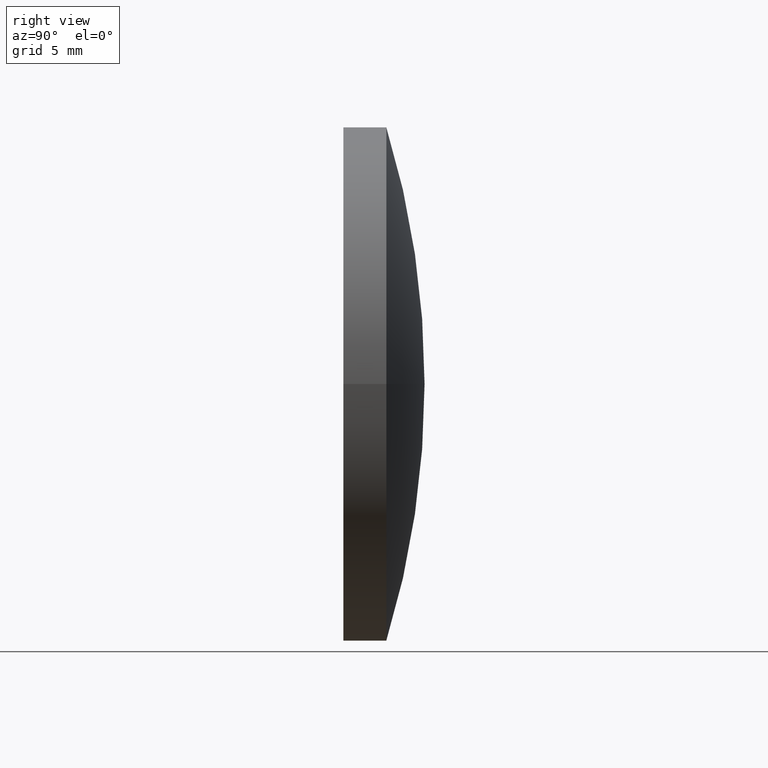
[diagram: clean part render]
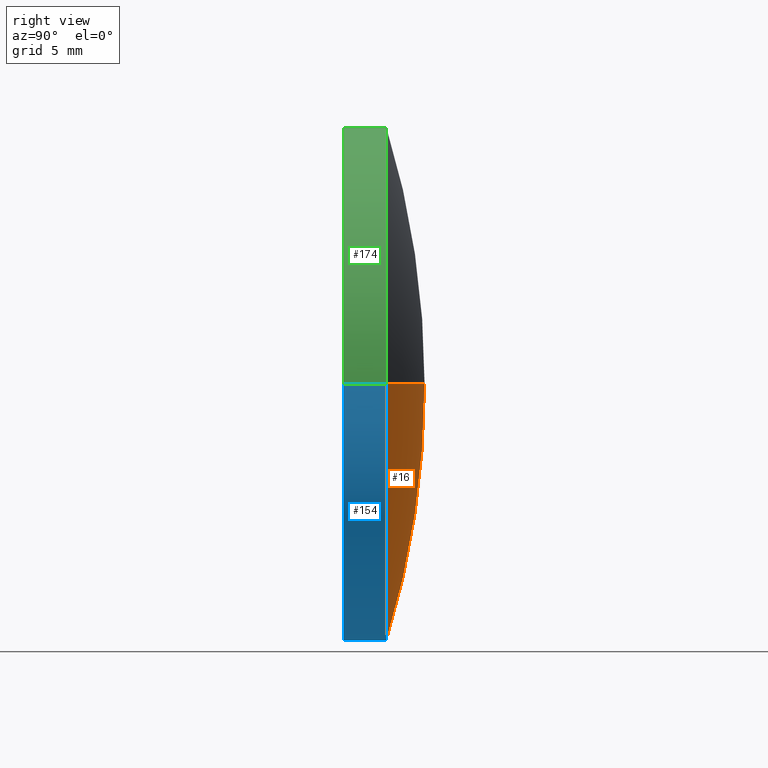
[diagram: same view with three faces highlighted in distinct colors, each labeled with its STEP entity id]
A machine part, right view with three faces highlighted in distinct colors.
Their STEP definitions:

[orange] entity #16 — the highlighted toroidal blend (fillet) surface has major radius 0.0114 mm and minor (blend) radius 51.64 mm.
#4 = CARTESIAN_POINT ( 'NONE',  ( -0.01138314681478247783, -46.90999874539085113, -1.394033431094687307E-18 ) ) ;
#6 = CIRCLE ( 'NONE', #128, 51.64000000000000057 ) ;
#9 = DIRECTION ( 'NONE',  ( -1.000000000000000000, 2.891205793294678696E-17, 0.000000000000000000 ) ) ;
#16 = ADVANCED_FACE ( 'NONE', ( #57 ), #80, .T. ) ;
#20 = VERTEX_POINT ( 'NONE', #193 ) ;
#29 = CARTESIAN_POINT ( 'NONE',  ( -15.00000000000000178, 2.500000000000000444, 0.000000000000000000 ) ) ;
#35 = CIRCLE ( 'NONE', #152, 15.00000000000000000 ) ;
#39 = EDGE_LOOP ( 'NONE', ( #147, #102, #159 ) ) ;
#57 = FACE_OUTER_BOUND ( 'NONE', #39, .T. ) ;
#69 = DIRECTION ( 'NONE',  ( -1.224646799147353207E-16, 1.870736303954534262E-33, 1.000000000000000000 ) ) ;
#74 = DIRECTION ( 'NONE',  ( -1.000000000000000000, 1.527572117329677268E-17, 0.000000000000000000 ) ) ;
#80 = TOROIDAL_SURFACE ( 'NONE', #199, -0.01138314681478176139, 51.64000000000000057 ) ;
#87 = VERTEX_POINT ( 'NONE', #125 ) ;
#92 = DIRECTION ( 'NONE',  ( 1.527572117329677268E-17, 1.000000000000000000, -0.000000000000000000 ) ) ;
#94 = EDGE_CURVE ( 'NONE', #87, #20, #6, .T. ) ;
#102 = ORIENTED_EDGE ( 'NONE', *, *, #187, .T. ) ;
#103 = CIRCLE ( 'NONE', #114, 51.64000000000000057 ) ;
#107 = CARTESIAN_POINT ( 'NONE',  ( -7.165898733771380869E-16, -46.90999874539085113, 0.000000000000000000 ) ) ;
#110 = CARTESIAN_POINT ( 'NONE',  ( 3.818930293324189780E-17, 2.499999999999997780, 0.000000000000000000 ) ) ;
#114 = AXIS2_PLACEMENT_3D ( 'NONE', #197, #140, #161 ) ;
#125 = CARTESIAN_POINT ( 'NONE',  ( 15.00000000000000000, 2.499999999999999556, 1.836970198721029589E-15 ) ) ;
#128 = AXIS2_PLACEMENT_3D ( 'NONE', #4, #69, #133 ) ;
#133 = DIRECTION ( 'NONE',  ( 1.000000000000000000, 0.000000000000000000, 1.224646799147353207E-16 ) ) ;
#140 = DIRECTION ( 'NONE',  ( -0.000000000000000000, 0.000000000000000000, -1.000000000000000000 ) ) ;
#143 = EDGE_CURVE ( 'NONE', #175, #20, #103, .T. ) ;
#147 = ORIENTED_EDGE ( 'NONE', *, *, #94, .F. ) ;
#150 = DIRECTION ( 'NONE',  ( 1.527572117329677268E-17, 1.000000000000000000, -0.000000000000000000 ) ) ;
#152 = AXIS2_PLACEMENT_3D ( 'NONE', #110, #92, #9 ) ;
#159 = ORIENTED_EDGE ( 'NONE', *, *, #143, .T. ) ;
#161 = DIRECTION ( 'NONE',  ( -1.000000000000000000, 0.000000000000000000, 0.000000000000000000 ) ) ;
#175 = VERTEX_POINT ( 'NONE', #29 ) ;
#187 = EDGE_CURVE ( 'NONE', #87, #175, #35, .T. ) ;
#193 = CARTESIAN_POINT ( 'NONE',  ( 7.225416114969374086E-17, 4.730000000000000426, 0.000000000000000000 ) ) ;
#197 = CARTESIAN_POINT ( 'NONE',  ( 0.01138314681478104495, -46.90999874539085113, 0.000000000000000000 ) ) ;
#199 = AXIS2_PLACEMENT_3D ( 'NONE', #107, #150, #74 ) ;

[blue] entity #154 — the highlighted cylindrical surface (partial cylindrical patch) has radius 15 mm, axis along (0, 1, -0).
#5 = DIRECTION ( 'NONE',  ( 1.527572117329677268E-17, 1.000000000000000000, -0.000000000000000000 ) ) ;
#8 = CARTESIAN_POINT ( 'NONE',  ( 15.00000000000000000, 4.730000000000000426, 1.836970198721029589E-15 ) ) ;
#9 = DIRECTION ( 'NONE',  ( -1.000000000000000000, 2.891205793294678696E-17, 0.000000000000000000 ) ) ;
#12 = CARTESIAN_POINT ( 'NONE',  ( -15.00000000000000000, 4.730000000000000426, 0.000000000000000000 ) ) ;
#21 = VERTEX_POINT ( 'NONE', #84 ) ;
#22 = ORIENTED_EDGE ( 'NONE', *, *, #187, .F. ) ;
#24 = EDGE_LOOP ( 'NONE', ( #191, #157, #151, #22 ) ) ;
#25 = CYLINDRICAL_SURFACE ( 'NONE', #89, 15.00000000000000000 ) ;
#26 = EDGE_CURVE ( 'NONE', #134, #87, #37, .T. ) ;
#27 = DIRECTION ( 'NONE',  ( -1.000000000000000000, 0.000000000000000000, 0.000000000000000000 ) ) ;
#29 = CARTESIAN_POINT ( 'NONE',  ( -15.00000000000000178, 2.500000000000000444, 0.000000000000000000 ) ) ;
#33 = VECTOR ( 'NONE', #163, 1000.000000000000000 ) ;
#35 = CIRCLE ( 'NONE', #152, 15.00000000000000000 ) ;
#37 = LINE ( 'NONE', #8, #149 ) ;
#48 = AXIS2_PLACEMENT_3D ( 'NONE', #61, #88, #127 ) ;
#61 = CARTESIAN_POINT ( 'NONE',  ( -3.611118645726067224E-32, -1.734723475976807094E-15, 0.000000000000000000 ) ) ;
#84 = CARTESIAN_POINT ( 'NONE',  ( -15.00000000000000000, -1.505587658377355424E-15, 0.000000000000000000 ) ) ;
#87 = VERTEX_POINT ( 'NONE', #125 ) ;
#88 = DIRECTION ( 'NONE',  ( 1.527572117329677268E-17, 1.000000000000000000, -0.000000000000000000 ) ) ;
#89 = AXIS2_PLACEMENT_3D ( 'NONE', #93, #124, #27 ) ;
#91 = LINE ( 'NONE', #12, #33 ) ;
#92 = DIRECTION ( 'NONE',  ( 1.527572117329677268E-17, 1.000000000000000000, -0.000000000000000000 ) ) ;
#93 = CARTESIAN_POINT ( 'NONE',  ( 7.225416114969374086E-17, 4.730000000000000426, 0.000000000000000000 ) ) ;
#110 = CARTESIAN_POINT ( 'NONE',  ( 3.818930293324189780E-17, 2.499999999999997780, 0.000000000000000000 ) ) ;
#124 = DIRECTION ( 'NONE',  ( 1.527572117329677268E-17, 1.000000000000000000, -0.000000000000000000 ) ) ;
#125 = CARTESIAN_POINT ( 'NONE',  ( 15.00000000000000000, 2.499999999999999556, 1.836970198721029589E-15 ) ) ;
#127 = DIRECTION ( 'NONE',  ( -1.000000000000000000, 1.527572117329677576E-17, 0.000000000000000000 ) ) ;
#134 = VERTEX_POINT ( 'NONE', #137 ) ;
#137 = CARTESIAN_POINT ( 'NONE',  ( 15.00000000000000000, -1.963859293576258765E-15, 1.836970198721029589E-15 ) ) ;
#139 = EDGE_CURVE ( 'NONE', #21, #175, #91, .T. ) ;
#149 = VECTOR ( 'NONE', #5, 1000.000000000000000 ) ;
#151 = ORIENTED_EDGE ( 'NONE', *, *, #139, .T. ) ;
#152 = AXIS2_PLACEMENT_3D ( 'NONE', #110, #92, #9 ) ;
#154 = ADVANCED_FACE ( 'NONE', ( #198 ), #25, .T. ) ;
#157 = ORIENTED_EDGE ( 'NONE', *, *, #180, .T. ) ;
#163 = DIRECTION ( 'NONE',  ( 1.527572117329677268E-17, 1.000000000000000000, -0.000000000000000000 ) ) ;
#175 = VERTEX_POINT ( 'NONE', #29 ) ;
#180 = EDGE_CURVE ( 'NONE', #134, #21, #195, .T. ) ;
#187 = EDGE_CURVE ( 'NONE', #87, #175, #35, .T. ) ;
#191 = ORIENTED_EDGE ( 'NONE', *, *, #26, .F. ) ;
#195 = CIRCLE ( 'NONE', #48, 15.00000000000000000 ) ;
#198 = FACE_OUTER_BOUND ( 'NONE', #24, .T. ) ;

[green] entity #174 — the highlighted cylindrical surface (partial cylindrical patch) has radius 15 mm, axis along (0, 1, -0).
#5 = DIRECTION ( 'NONE',  ( 1.527572117329677268E-17, 1.000000000000000000, -0.000000000000000000 ) ) ;
#8 = CARTESIAN_POINT ( 'NONE',  ( 15.00000000000000000, 4.730000000000000426, 1.836970198721029589E-15 ) ) ;
#12 = CARTESIAN_POINT ( 'NONE',  ( -15.00000000000000000, 4.730000000000000426, 0.000000000000000000 ) ) ;
#13 = EDGE_CURVE ( 'NONE', #21, #134, #86, .T. ) ;
#21 = VERTEX_POINT ( 'NONE', #84 ) ;
#26 = EDGE_CURVE ( 'NONE', #134, #87, #37, .T. ) ;
#29 = CARTESIAN_POINT ( 'NONE',  ( -15.00000000000000178, 2.500000000000000444, 0.000000000000000000 ) ) ;
#33 = VECTOR ( 'NONE', #163, 1000.000000000000000 ) ;
#37 = LINE ( 'NONE', #8, #149 ) ;
#38 = ORIENTED_EDGE ( 'NONE', *, *, #26, .T. ) ;
#41 = AXIS2_PLACEMENT_3D ( 'NONE', #148, #135, #90 ) ;
#45 = ORIENTED_EDGE ( 'NONE', *, *, #126, .F. ) ;
#54 = CARTESIAN_POINT ( 'NONE',  ( 3.818930293324189780E-17, 2.499999999999997780, 0.000000000000000000 ) ) ;
#58 = CYLINDRICAL_SURFACE ( 'NONE', #138, 15.00000000000000000 ) ;
#59 = DIRECTION ( 'NONE',  ( -1.000000000000000000, 0.000000000000000000, 0.000000000000000000 ) ) ;
#67 = CIRCLE ( 'NONE', #177, 15.00000000000000000 ) ;
#71 = DIRECTION ( 'NONE',  ( -1.000000000000000000, 2.891205793294678696E-17, 0.000000000000000000 ) ) ;
#73 = FACE_OUTER_BOUND ( 'NONE', #118, .T. ) ;
#78 = DIRECTION ( 'NONE',  ( 1.527572117329677268E-17, 1.000000000000000000, -0.000000000000000000 ) ) ;
#84 = CARTESIAN_POINT ( 'NONE',  ( -15.00000000000000000, -1.505587658377355424E-15, 0.000000000000000000 ) ) ;
#85 = ORIENTED_EDGE ( 'NONE', *, *, #139, .F. ) ;
#86 = CIRCLE ( 'NONE', #41, 15.00000000000000000 ) ;
#87 = VERTEX_POINT ( 'NONE', #125 ) ;
#90 = DIRECTION ( 'NONE',  ( -1.000000000000000000, 1.527572117329677576E-17, 0.000000000000000000 ) ) ;
#91 = LINE ( 'NONE', #12, #33 ) ;
#118 = EDGE_LOOP ( 'NONE', ( #146, #38, #45, #85 ) ) ;
#125 = CARTESIAN_POINT ( 'NONE',  ( 15.00000000000000000, 2.499999999999999556, 1.836970198721029589E-15 ) ) ;
#126 = EDGE_CURVE ( 'NONE', #175, #87, #67, .T. ) ;
#134 = VERTEX_POINT ( 'NONE', #137 ) ;
#135 = DIRECTION ( 'NONE',  ( 1.527572117329677268E-17, 1.000000000000000000, -0.000000000000000000 ) ) ;
#137 = CARTESIAN_POINT ( 'NONE',  ( 15.00000000000000000, -1.963859293576258765E-15, 1.836970198721029589E-15 ) ) ;
#138 = AXIS2_PLACEMENT_3D ( 'NONE', #192, #78, #59 ) ;
#139 = EDGE_CURVE ( 'NONE', #21, #175, #91, .T. ) ;
#146 = ORIENTED_EDGE ( 'NONE', *, *, #13, .T. ) ;
#148 = CARTESIAN_POINT ( 'NONE',  ( -3.611118645726067224E-32, -1.734723475976807094E-15, 0.000000000000000000 ) ) ;
#149 = VECTOR ( 'NONE', #5, 1000.000000000000000 ) ;
#163 = DIRECTION ( 'NONE',  ( 1.527572117329677268E-17, 1.000000000000000000, -0.000000000000000000 ) ) ;
#173 = DIRECTION ( 'NONE',  ( 1.527572117329677268E-17, 1.000000000000000000, -0.000000000000000000 ) ) ;
#174 = ADVANCED_FACE ( 'NONE', ( #73 ), #58, .T. ) ;
#175 = VERTEX_POINT ( 'NONE', #29 ) ;
#177 = AXIS2_PLACEMENT_3D ( 'NONE', #54, #173, #71 ) ;
#192 = CARTESIAN_POINT ( 'NONE',  ( 7.225416114969374086E-17, 4.730000000000000426, 0.000000000000000000 ) ) ;